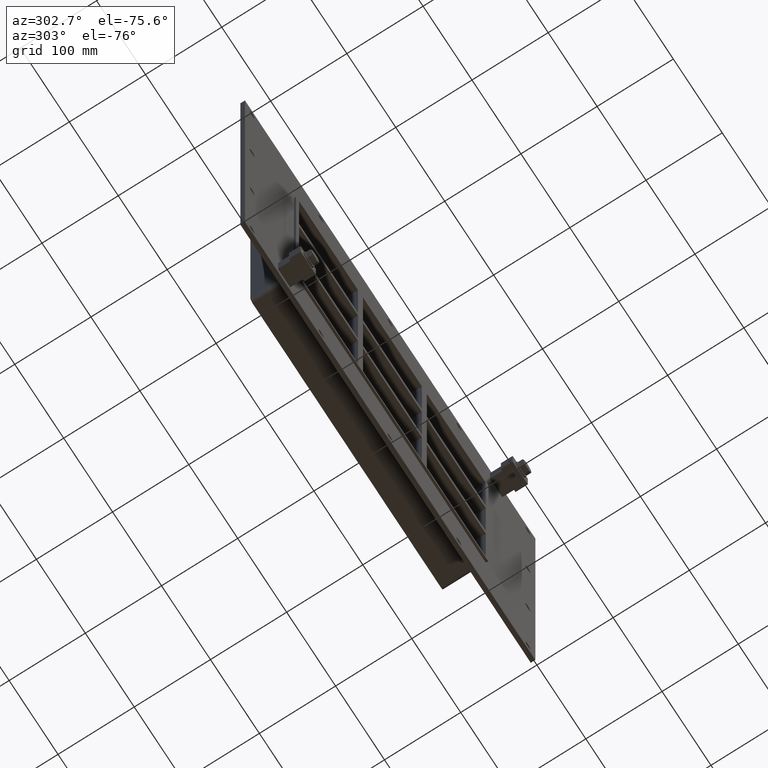
[diagram: clean part render]
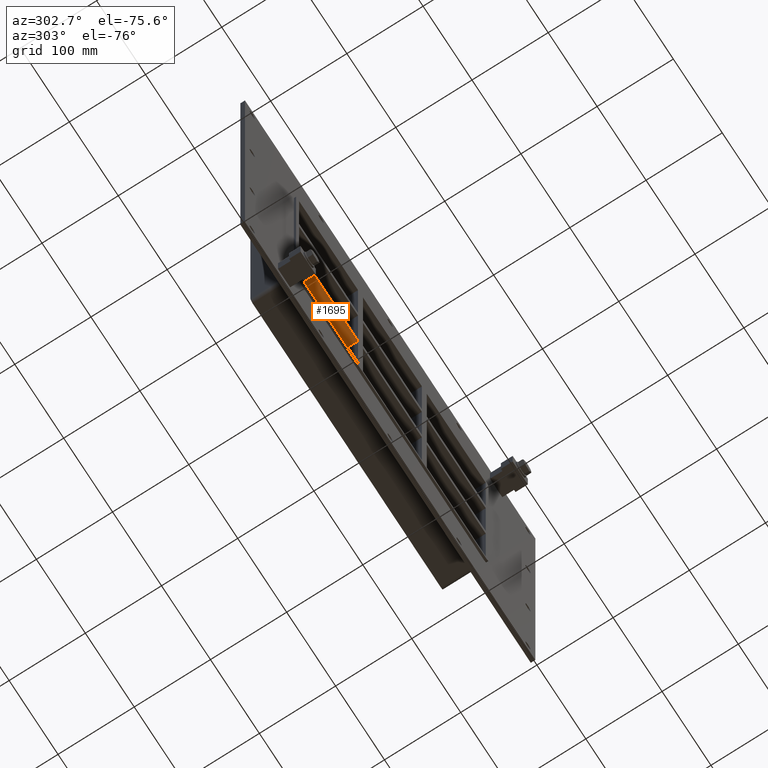
[diagram: same view with one face highlighted and labeled with its STEP entity id]
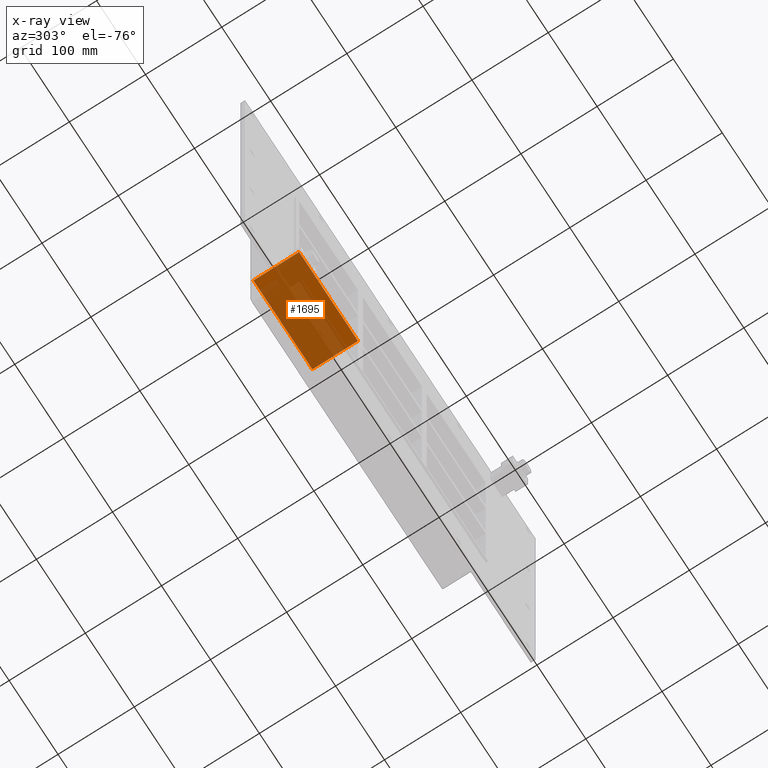
[diagram: x-ray of the same camera — body ghosted, the highlighted face saturated]
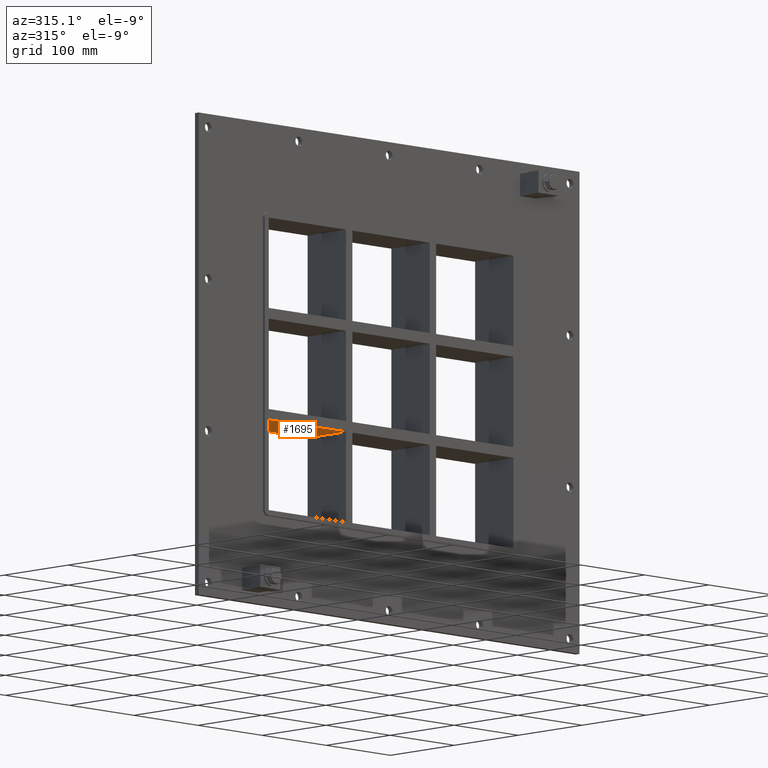
[diagram: same view with one face highlighted and labeled with its STEP entity id]
A machine part, auxiliary view. The second image highlights one B-rep face of the part: STEP entity #1695.
The next image is the same camera in x-ray: the body ghosted, the highlighted face saturated — about 79% of this face is hidden behind the body in this view.
A second angle (auxiliary view) of the same face is appended — the face is thin or edge-on in the first view.
In plain terms, the highlighted planar face has unit normal (0, 0, -1).
Its self-contained STEP definition (entity closure, byte-faithful):
#1106=CARTESIAN_POINT('',(-190.74999999999747,57.0,-62.500000000011369));
#1107=VERTEX_POINT('',#1106);
#1124=CARTESIAN_POINT('',(-70.249999999999091,57.0,-62.500000000011212));
#1125=VERTEX_POINT('',#1124);
#1132=CARTESIAN_POINT('',(-70.249999999999091,57.0,-62.500000000011212));
#1133=DIRECTION('',(-1.0,0.0,0.0));
#1134=VECTOR('',#1133,120.49999999999841);
#1135=LINE('',#1132,#1134);
#1136=EDGE_CURVE('',#1125,#1107,#1135,.T.);
#1569=CARTESIAN_POINT('',(-70.249999999999091,-3.0,-62.500000000011212));
#1570=VERTEX_POINT('',#1569);
#1571=CARTESIAN_POINT('',(-190.74999999999747,-3.0,-62.500000000011369));
#1572=VERTEX_POINT('',#1571);
#1573=CARTESIAN_POINT('',(-70.249999999999091,-3.0,-62.500000000011212));
#1574=DIRECTION('',(-1.0,0.0,0.0));
#1575=VECTOR('',#1574,120.49999999999841);
#1576=LINE('',#1573,#1575);
#1577=EDGE_CURVE('',#1570,#1572,#1576,.T.);
#1674=CARTESIAN_POINT('',(190.75000000000728,-3.0,-62.500000000010871));
#1675=DIRECTION('',(0.0,0.0,-1.0));
#1676=DIRECTION('',(-1.0,0.0,0.0));
#1677=AXIS2_PLACEMENT_3D('',#1674,#1675,#1676);
#1678=PLANE('',#1677);
#1679=CARTESIAN_POINT('',(-70.249999999999119,-3.0,-62.500000000011212));
#1680=DIRECTION('',(0.0,1.0,0.0));
#1681=VECTOR('',#1680,60.0);
#1682=LINE('',#1679,#1681);
#1683=EDGE_CURVE('',#1570,#1125,#1682,.T.);
#1684=ORIENTED_EDGE('',*,*,#1683,.F.);
#1685=ORIENTED_EDGE('',*,*,#1577,.T.);
#1686=CARTESIAN_POINT('',(-190.75000000000006,57.000000000000007,-62.500000000011369));
#1687=DIRECTION('',(0.0,-1.0,0.0));
#1688=VECTOR('',#1687,60.000000000000007);
#1689=LINE('',#1686,#1688);
#1690=EDGE_CURVE('',#1107,#1572,#1689,.T.);
#1691=ORIENTED_EDGE('',*,*,#1690,.F.);
#1692=ORIENTED_EDGE('',*,*,#1136,.F.);
#1693=EDGE_LOOP('',(#1684,#1685,#1691,#1692));
#1694=FACE_OUTER_BOUND('',#1693,.T.);
#1695=ADVANCED_FACE('',(#1694),#1678,.T.);